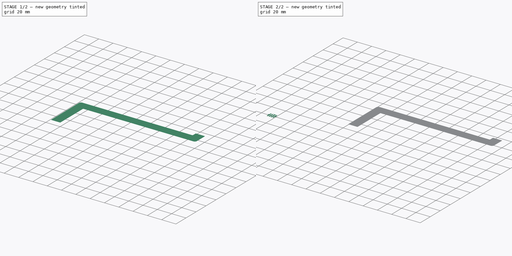
[diagram: build sequence overview — one tinted view per stage of 2, left to right]
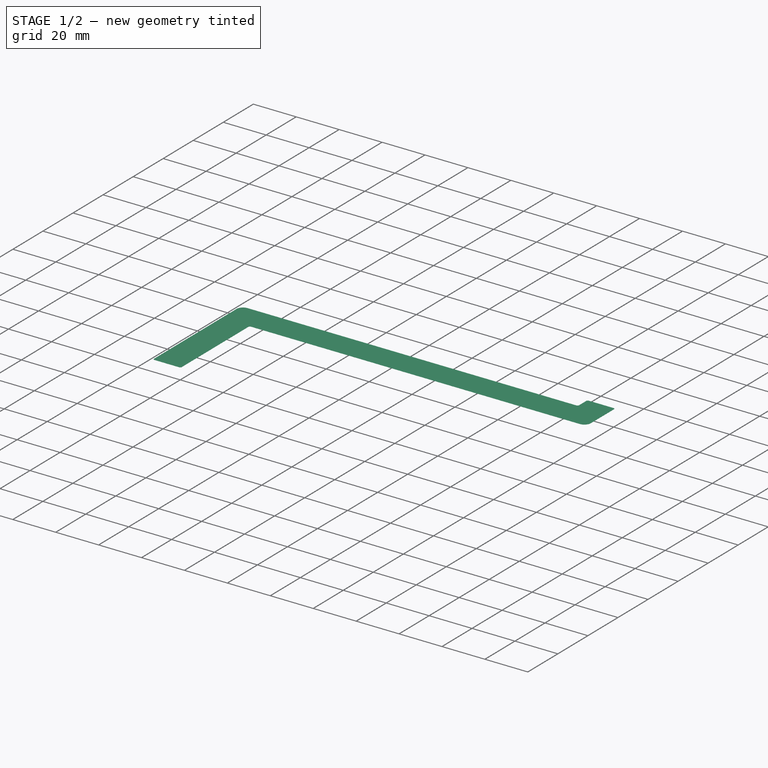
[diagram: stage 1 of 2 — iso view after this stage's code; geometry added in this stage tinted green]
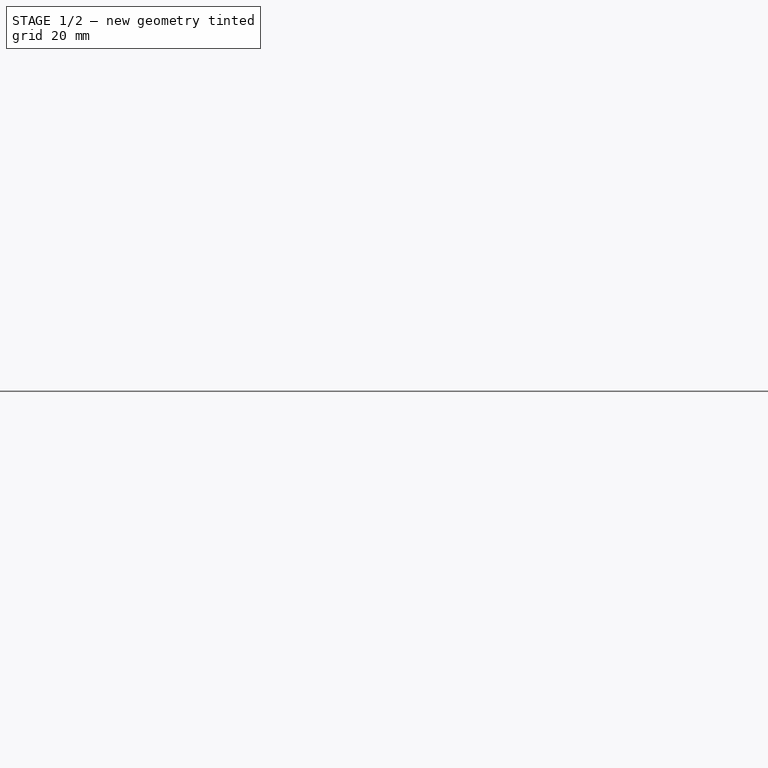
[diagram: stage 1 of 2 — front view after this stage's code; geometry added in this stage tinted green]
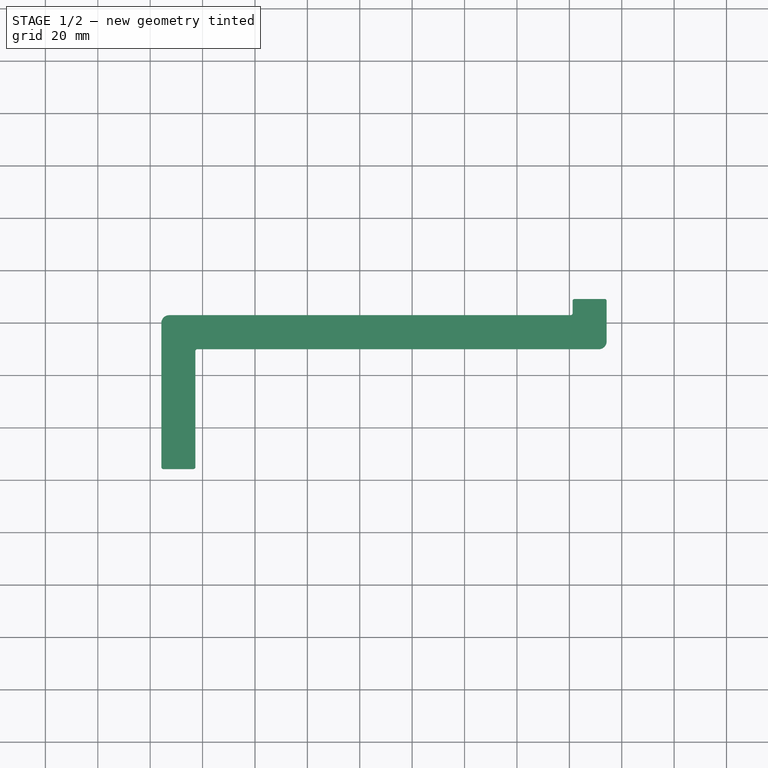
[diagram: stage 1 of 2 — top view after this stage's code; geometry added in this stage tinted green]
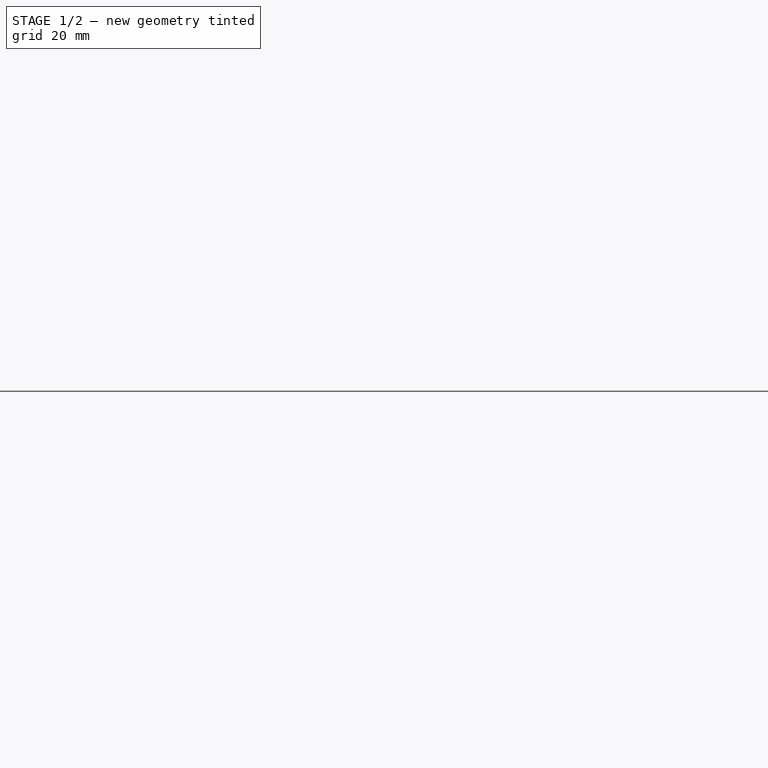
[diagram: stage 1 of 2 — right view after this stage's code; geometry added in this stage tinted green]
FCSTD DOCUMENT  (FreeCAD 0.20R29603 (Git))
Label: tape
License: All rights reserved
LicenseURL: http://en.wikipedia.org/wiki/All_rights_reserved
objects: Sketcher::SketchObject×2, Image::ImagePlane×1, Part::Extrusion×1, PartDesign::Pad×1, PartDesign::Body×1
note: 6 computed .brp shape members not serialized (recipe doc carries the construction recipe); baked Part::Feature solids carry a one-line shape summary decoded from their .brp

FEATURE [PartDesign::Pad] Pad
  Direction = (0,0,1)
  Length = 0.01
  Length2 = 10
  Profile = -> Sketch
  ReferenceAxis = -> Sketch [N_Axis]
  Type = 0
FEATURE [PartDesign::Body] Body
  Group = -> [Sketch,Pad]
  Origin = -> Origin
  Tip = -> Pad
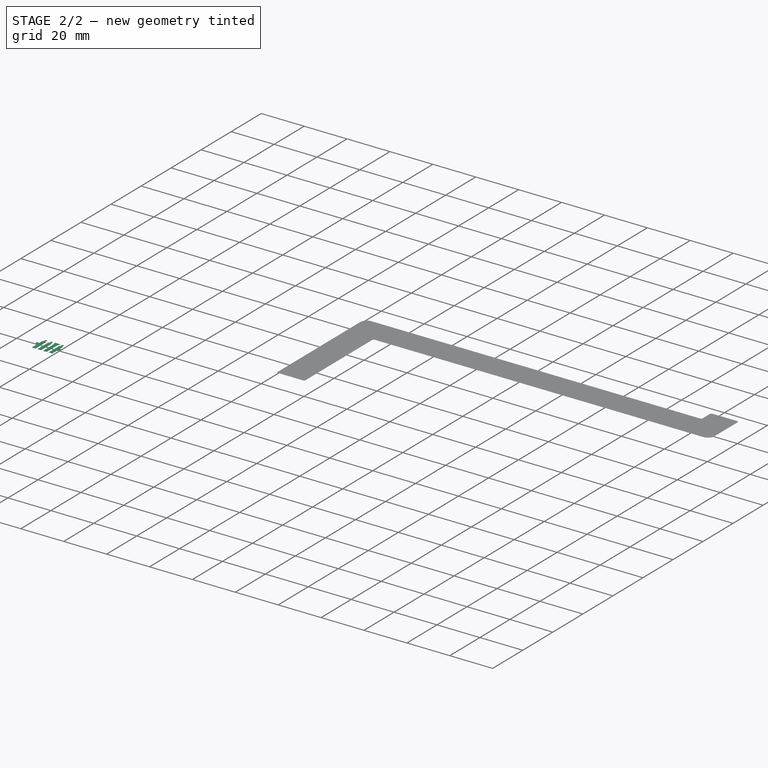
[diagram: stage 2 of 2 — iso view after this stage's code; geometry added in this stage tinted green]
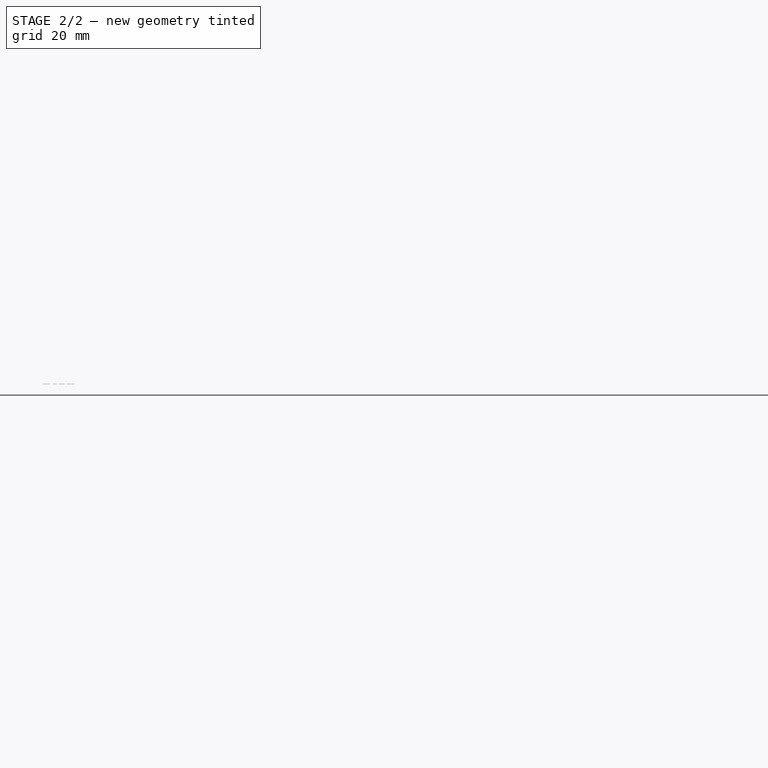
[diagram: stage 2 of 2 — front view after this stage's code; geometry added in this stage tinted green]
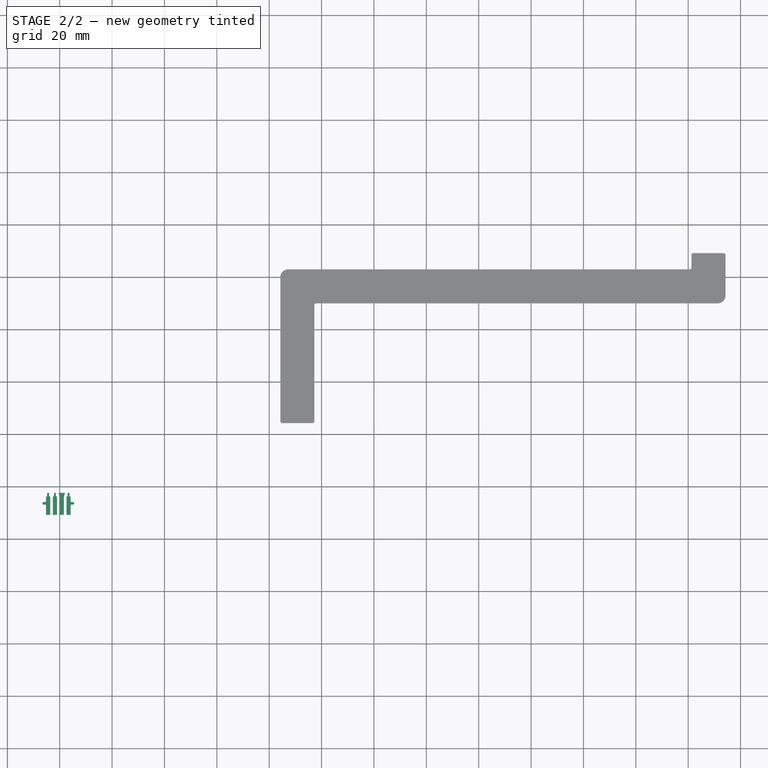
[diagram: stage 2 of 2 — top view after this stage's code; geometry added in this stage tinted green]
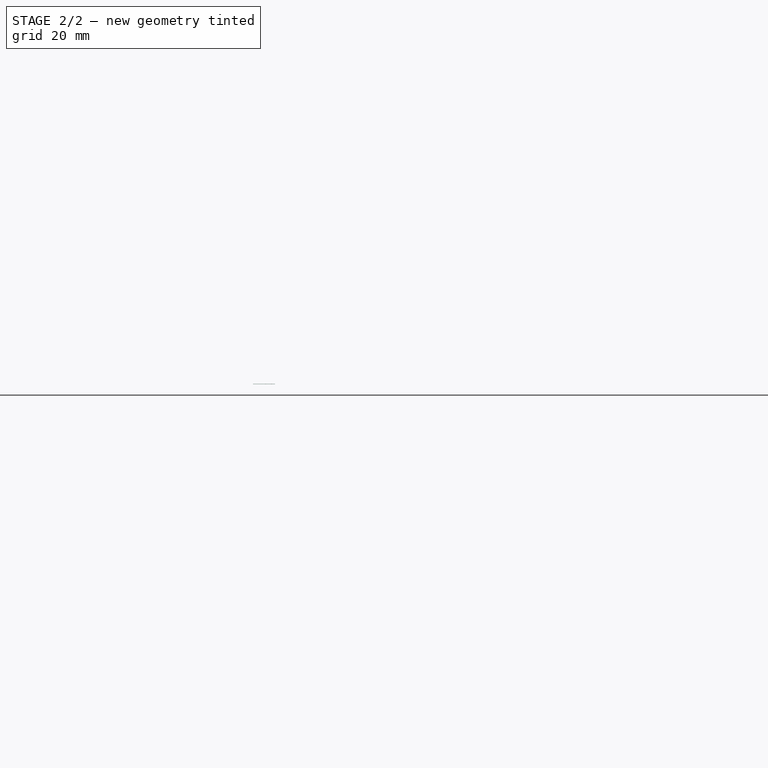
[diagram: stage 2 of 2 — right view after this stage's code; geometry added in this stage tinted green]
FEATURE [Image::ImagePlane] ImagePlane
  XSize = 179.676
  YSize = 81.3933
FEATURE [Sketcher::SketchObject] Sketch
  FullyConstrained = true
  MapMode = 5
  Support = -> [XY_Plane]
  sketch-geometry (16):
    g0: LineSegment StartX=17.25 StartY=5 StartZ=0 EndX=17.25 EndY=49.25 EndZ=0
    g1: LineSegment StartX=18 StartY=50 StartZ=0 EndX=171.25 EndY=50 EndZ=0
    g2: LineSegment StartX=174.25 StartY=53 StartZ=0 EndX=174.25 EndY=68.45 EndZ=0
    g3: LineSegment StartX=162 StartY=69.2 StartZ=0 EndX=173.5 EndY=69.2 EndZ=0
    g4: LineSegment StartX=161.25 StartY=68.45 StartZ=0 EndX=161.25 EndY=63.75 EndZ=0
    g5: LineSegment StartX=160.5 StartY=63 StartZ=0 EndX=7.25 EndY=63 EndZ=0
    g6: LineSegment StartX=4.25 StartY=60 StartZ=0 EndX=4.25 EndY=5 EndZ=0
    g7: LineSegment StartX=5 StartY=4.25 StartZ=0 EndX=16.5 EndY=4.25 EndZ=0
    g8: ArcOfCircle CenterX=16.5 CenterY=5 CenterZ=0 NormalX=0 NormalY=0 NormalZ=1 AngleXU=0 Radius=0.75 StartAngle=4.71239 EndAngle=6.28319
    g9: ArcOfCircle CenterX=5 CenterY=5 CenterZ=0 NormalX=0 NormalY=0 NormalZ=1 AngleXU=0 Radius=0.75 StartAngle=3.14159 EndAngle=4.71239
    g10: ArcOfCircle CenterX=18 CenterY=49.25 CenterZ=0 NormalX=0 NormalY=0 NormalZ=1 AngleXU=0 Radius=0.75 StartAngle=1.5708 EndAngle=3.14159
    g11: ArcOfCircle CenterX=7.25 CenterY=60 CenterZ=0 NormalX=0 NormalY=0 NormalZ=1 AngleXU=0 Radius=3 StartAngle=1.5708 EndAngle=3.14159
    g12: ArcOfCircle CenterX=162 CenterY=68.45 CenterZ=0 NormalX=0 NormalY=0 NormalZ=1 AngleXU=0 Radius=0.75 StartAngle=1.5708 EndAngle=3.14159
    g13: ArcOfCircle CenterX=173.5 CenterY=68.45 CenterZ=0 NormalX=0 NormalY=0 NormalZ=1 AngleXU=0 Radius=0.75 StartAngle=-3.6e-15 EndAngle=1.5708
    g14: ArcOfCircle CenterX=160.5 CenterY=63.75 CenterZ=0 NormalX=0 NormalY=0 NormalZ=1 AngleXU=0 Radius=0.75 StartAngle=4.71239 EndAngle=6.28319
    g15: ArcOfCircle CenterX=171.25 CenterY=53 CenterZ=0 NormalX=0 NormalY=0 NormalZ=1 AngleXU=0 Radius=3 StartAngle=4.71239 EndAngle=6.28319
  constraints (40):
    c: Vertical(g0)
    c: Horizontal(g1)
    c: Vertical(g2)
    c: Horizontal(g3)
    c: Horizontal(g5)
    c: Vertical(g6)
    c: Horizontal(g7)
    c: Vertical(g4)
    c: Tangent(g12,g4) = -1.5708
    c: Tangent(g12,g3) = 1.5708
    c: Tangent(g13,g3) = 1.5708
    c: Tangent(g13,g2) = -1.5708
    c: Tangent(g15,g2) = -1.5708
    c: Tangent(g15,g1) = -1.5708
    c: Tangent(g14,g4) = 1.5708
    c: Tangent(g14,g5) = 1.5708
    c: Tangent(g10,g1) = 1.5708
    c: Tangent(g10,g0) = 1.5708
    c: Tangent(g8,g0) = -1.5708
    c: Tangent(g8,g7) = -1.5708
    c: Tangent(g9,g7) = -1.5708
    c: Tangent(g9,g6) = -1.5708
    c: Tangent(g11,g6) = -1.5708
    c: Tangent(g11,g5) = -1.5708
    c: DistanceY(g1,g5) = 13
    c: DistanceX(g6,g0) = 13
    c: DistanceX(g4,g2) = 13
    c: DistanceY(g1,g3) = 19.2
    c: DistanceY(g7,g0) = 45
    c: Radius(g15) = 3
    c: Radius(g13) = 0.75
    c: Equal(g11,g15)
    c: Equal(g13,g12)
    c: Equal(g12,g8)
    c: Equal(g8,g9)
    c: Equal(g14,g10)
    c: Radius(g14) = 0.75
    c: DistanceX(g6,g2) = 170
    c: DistanceX(g-1,g9) = 5
    c: DistanceY(g-1,g9) = 5
FEATURE [Sketcher::SketchObject] Sketch001
  FullyConstrained = false
  MapMode = 5
  Support = -> [XY_Plane]
  sketch-geometry (47):
    g0: LineSegment StartX=-86.6494 StartY=-26.4457 StartZ=0 EndX=-73.8994 EndY=-26.4457 EndZ=0
    g1: LineSegment StartX=-85.2185 StartY=-23.8811 StartZ=0 EndX=-84.7935 EndY=-23.6311 EndZ=0
    g2: LineSegment StartX=-84.7935 StartY=-23.6311 StartZ=0 EndX=-84.7935 EndY=-22.3889 EndZ=0
    g3: LineSegment StartX=-84.7935 StartY=-22.3889 StartZ=0 EndX=-84.0435 EndY=-22.3889 EndZ=0
    g4: LineSegment StartX=-84.0435 StartY=-22.3889 StartZ=0 EndX=-84.0435 EndY=-23.6311 EndZ=0
    g5: LineSegment StartX=-84.0435 StartY=-23.6311 StartZ=0 EndX=-83.6185 EndY=-23.8811 EndZ=0
    g6: LineSegment StartX=-83.6185 StartY=-23.8811 StartZ=0 EndX=-83.6185 EndY=-30.7811 EndZ=0
    g7: LineSegment StartX=-83.6185 StartY=-30.7811 StartZ=0 EndX=-85.2185 EndY=-30.7811 EndZ=0
    g8: LineSegment StartX=-85.2185 StartY=-30.7811 StartZ=0 EndX=-85.2185 EndY=-26.8811 EndZ=0
    g9: LineSegment StartX=-85.2185 StartY=-26.8811 StartZ=0 EndX=-86.0685 EndY=-26.8811 EndZ=0
    g10: LineSegment StartX=-86.0685 StartY=-25.8811 StartZ=0 EndX=-85.2185 EndY=-25.8811 EndZ=0
    g11: LineSegment StartX=-85.2185 StartY=-25.8811 StartZ=0 EndX=-85.2185 EndY=-23.8811 EndZ=0
    g12: ArcOfCircle CenterX=-86.0685 CenterY=-26.3811 CenterZ=0 NormalX=0 NormalY=0 NormalZ=1 AngleXU=0 Radius=0.5 StartAngle=1.5708 EndAngle=4.71239
    g13: LineSegment StartX=-77.4185 StartY=-23.8811 StartZ=0 EndX=-77.4185 EndY=-30.7811 EndZ=0
    g14: LineSegment StartX=-77.4185 StartY=-30.7811 StartZ=0 EndX=-75.8185 EndY=-30.7811 EndZ=0
    g15: LineSegment StartX=-75.8185 StartY=-30.7811 StartZ=0 EndX=-75.8185 EndY=-26.8811 EndZ=0
    g16: LineSegment StartX=-75.8185 StartY=-26.8811 StartZ=0 EndX=-74.9685 EndY=-26.8811 EndZ=0
    g17: LineSegment StartX=-75.8185 StartY=-25.8811 StartZ=0 EndX=-74.9685 EndY=-25.8811 EndZ=0
    g18: LineSegment StartX=-75.8185 StartY=-25.8811 StartZ=0 EndX=-75.8185 EndY=-23.8811 EndZ=0
    g19: LineSegment StartX=-75.8185 StartY=-23.8811 StartZ=0 EndX=-76.2435 EndY=-23.6311 EndZ=0
    g20: LineSegment StartX=-76.2435 StartY=-23.6311 StartZ=0 EndX=-76.2435 EndY=-22.3889 EndZ=0
    g21: LineSegment StartX=-76.2435 StartY=-22.3889 StartZ=0 EndX=-76.9935 EndY=-22.3889 EndZ=0
    g22: LineSegment StartX=-76.9935 StartY=-22.3889 StartZ=0 EndX=-76.9935 EndY=-23.6311 EndZ=0
    g23: LineSegment StartX=-76.9935 StartY=-23.6311 StartZ=0 EndX=-77.4185 EndY=-23.8811 EndZ=0
    g24: ArcOfCircle CenterX=-74.9685 CenterY=-26.3811 CenterZ=0 NormalX=0 NormalY=0 NormalZ=1 AngleXU=0 Radius=0.5 StartAngle=4.71239 EndAngle=7.85398
    g25: LineSegment StartX=-72.9769 StartY=-30.7811 StartZ=0 EndX=-87.3443 EndY=-30.7811 EndZ=0
    g26: LineSegment StartX=-82.6185 StartY=-30.7811 StartZ=0 EndX=-81.0185 EndY=-30.7811 EndZ=0
    g27: LineSegment StartX=-81.0185 StartY=-30.7811 StartZ=0 EndX=-81.0185 EndY=-23.8811 EndZ=0
    g28: LineSegment StartX=-81.0185 StartY=-23.8811 StartZ=0 EndX=-81.4435 EndY=-23.6311 EndZ=0
    g29: LineSegment StartX=-81.4435 StartY=-23.6311 StartZ=0 EndX=-81.4435 EndY=-22.3889 EndZ=0
    g30: LineSegment StartX=-81.4435 StartY=-22.3889 StartZ=0 EndX=-82.1935 EndY=-22.3889 EndZ=0
    g31: LineSegment StartX=-82.1935 StartY=-22.3889 StartZ=0 EndX=-82.1935 EndY=-23.6311 EndZ=0
    g32: LineSegment StartX=-82.1935 StartY=-23.6311 StartZ=0 EndX=-82.6185 EndY=-23.8811 EndZ=0
    g33: LineSegment StartX=-82.6185 StartY=-23.8811 StartZ=0 EndX=-82.6185 EndY=-30.7811 EndZ=0
    g34: LineSegment StartX=-78.4185 StartY=-30.7811 StartZ=0 EndX=-78.4185 EndY=-23.8811 EndZ=0
    g35: LineSegment StartX=-78.4185 StartY=-23.8811 StartZ=0 EndX=-77.9685 EndY=-22.3889 EndZ=0
    g36: LineSegment StartX=-77.9685 StartY=-22.3889 StartZ=0 EndX=-80.4685 EndY=-22.3889 EndZ=0
    g37: LineSegment StartX=-80.4685 StartY=-22.3889 StartZ=0 EndX=-80.0185 EndY=-23.8811 EndZ=0
    g38: LineSegment StartX=-80.0185 StartY=-23.8811 StartZ=0 EndX=-80.0185 EndY=-30.7811 EndZ=0
    g39: LineSegment StartX=-80.0185 StartY=-30.7811 StartZ=0 EndX=-78.4185 EndY=-30.7811 EndZ=0
    g40: LineSegment StartX=-87.3958 StartY=-25.8811 StartZ=0 EndX=-72.0882 EndY=-25.8811 EndZ=0
    g41: LineSegment StartX=-72.0882 StartY=-26.8811 StartZ=0 EndX=-87.0482 EndY=-26.8811 EndZ=0
    g42: LineSegment StartX=-80.5185 StartY=-35.9742 StartZ=0 EndX=-80.5185 EndY=-21.6277 EndZ=0
    g43: LineSegment StartX=-86.7112 StartY=-22.3889 StartZ=0 EndX=-72.8495 EndY=-22.3889 EndZ=0
    g44: LineSegment StartX=-87.0343 StartY=-23.8811 StartZ=0 EndX=-71.7013 EndY=-23.8811 EndZ=0
    g45: LineSegment StartX=-87.4901 StartY=-23.6311 StartZ=0 EndX=-72.1433 EndY=-23.6311 EndZ=0
    g46: LineSegment StartX=-79.2185 StartY=-21.9372 StartZ=0 EndX=-79.2185 EndY=-34.4402 EndZ=0
  constraints (126):
    c: Horizontal(g0)
    c: DistanceX(g0,g0) = 12.75  'scale'
    c: Coincident(g1,g2)
    c: Coincident(g2,g3)
    c: Horizontal(g3)
    c: Coincident(g3,g4)
    c: Coincident(g4,g5)
    c: Coincident(g5,g6)
    c: Vertical(g6)
    c: Coincident(g6,g7)
    c: Coincident(g7,g8)
    c: Vertical(g8)
    c: Horizontal(g9)
    c: Horizontal(g10)
    c: Coincident(g10,g11)
    c: Coincident(g11,g1)
    c: Coincident(g12,g10)
    c: Coincident(g12,g9)
    c: Vertical(g11)
    c: Coincident(g13,g14)
    c: Horizontal(g14)
    c: Coincident(g14,g15)
    c: Horizontal(g17)
    c: Coincident(g17,g18)
    c: Coincident(g18,g19)
    c: Coincident(g19,g20)
    c: Coincident(g20,g21)
    c: Coincident(g21,g22)
    c: Coincident(g22,g23)
    c: Coincident(g23,g13)
    c: Coincident(g24,g16)
    c: Horizontal(g16)
    c: DistanceX(g0) = -73.8994
    c: DistanceY(g0) = -26.4457
    c: Coincident(g9,g8)
    c: DistanceX(g14,g14) = 1.6
    c: Horizontal(g25)
    c: PointOnObject(g6,g25)
    c: PointOnObject(g13,g25)
    c: Horizontal(g7)
    c: PointOnObject(g26,g25)
    c: Coincident(g26,g27)
    c: Vertical(g27)
    c: Coincident(g27,g28)
    c: Coincident(g28,g29)
    c: Vertical(g29)
    c: Coincident(g29,g30)
    c: Horizontal(g30)
    c: Coincident(g30,g31)
    c: Vertical(g31)
    c: Coincident(g31,g32)
    c: Coincident(g32,g33)
    c: Coincident(g33,g26)
    c: Vertical(g33)
    c: Vertical(g34)
    c: Coincident(g34,g35)
    c: Coincident(g35,g36)
    c: Coincident(g36,g37)
    c: Coincident(g37,g38)
    c: PointOnObject(g38,g25)
    c: Vertical(g38)
    c: Coincident(g38,g39)
    c: Coincident(g39,g34)
    c: Horizontal(g26)
    c: Equal(g7,g26)
    c: Equal(g26,g39)
    c: Equal(g39,g14)
    c: DistanceX(g6,g26) = 1
    c: Vertical(g13)
    c: Coincident(g15,g16)
    c: Vertical(g15)
    c: Vertical(g18)
    c: Vertical(g2)
    c: Vertical(g4)
    c: Horizontal(g40)
    c: Horizontal(g41)
    c: DistanceY(g41,g40) = 1
    c: DistanceX(g40,g41) = 0
    c: PointOnObject(g16,g41)
    c: PointOnObject(g17,g40)
    c: PointOnObject(g10,g40)
    c: PointOnObject(g9,g41)
    c: Equal(g16,g17)
    c: DistanceX(g17,g17) = 0.85
    c: Equal(g10,g17)
    c: DistanceX(g10,g8) = 0
    c: Symmetric(g24,g12,g42)
    c: DistanceX(g26,g38) = 1
    c: Symmetric(g14,g7,g42)
    c: Symmetric(g34,g26,g42)
    c: DistanceX(g21,g21) = 0.75
    c: Horizontal(g43)
    c: Symmetric(g20,g2,g42)
    c: Symmetric(g21,g3,g42)
    c: Equal(g30,g3)
    c: PointOnObject(g20,g43)
    c: PointOnObject(g29,g43)
    c: Tangent(g24,g17) = 1.5708
    c: Horizontal(g44)
    c: PointOnObject(g18,g44)
    c: PointOnObject(g13,g44)
    c: PointOnObject(g34,g44)
    c: PointOnObject(g37,g44)
    c: PointOnObject(g27,g44)
    c: PointOnObject(g32,g44)
    c: PointOnObject(g1,g44)
    c: PointOnObject(g5,g44)
    c: Equal(g1,g5)
    c: Equal(g5,g32)
    c: Equal(g32,g28)
    c: Equal(g28,g23)
    c: Equal(g23,g19)
    c: Vertical(g22)
    c: Vertical(g20)
    c: Equal(g20,g22)
    c: Equal(g22,g29)
    c: Equal(g29,g31)
    c: Horizontal(g45)
    c: PointOnObject(g19,g45)
    c: DistanceY(g44,g45) = 0.25
    c: DistanceX(g36,g36) = 2.5
    c: Symmetric(g34,g38,g46)
    c: Symmetric(g35,g36,g46)
    c: DistanceY(g8,g8) = 3.9
    c: DistanceY(g18,g18) = 2
    c: PointOnObject(g35,g43)
FEATURE [Part::Extrusion] Extrude
  Base = -> Sketch001
  Dir = (0,0,1)
  DirMode = 2
  FaceMakerClass = Part::FaceMakerBullseye
  LengthFwd = 0.1
  LengthRev = 0
  Solid = true
  Symmetric = false
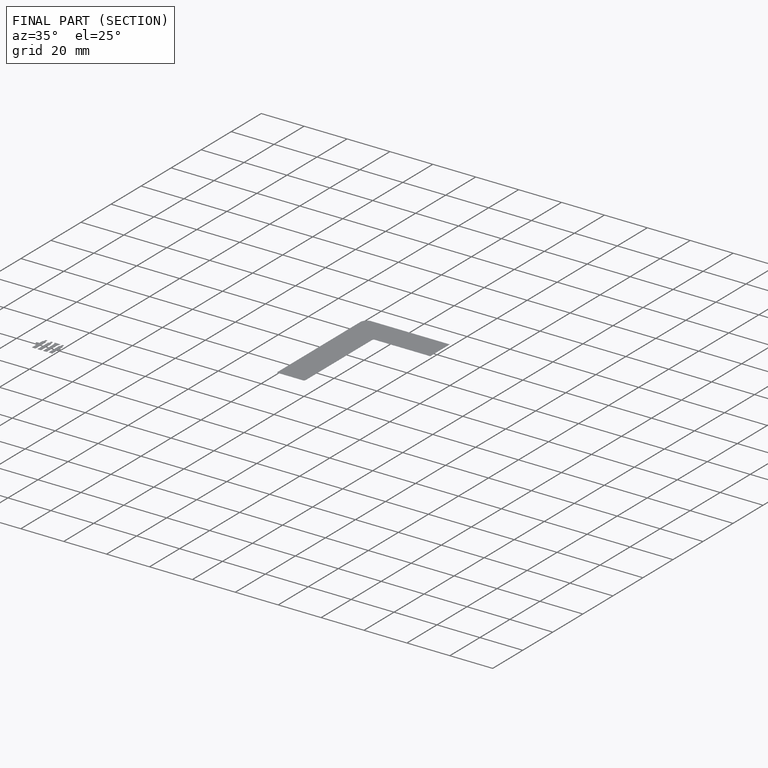
[diagram: finished part — half-section view (interior)]
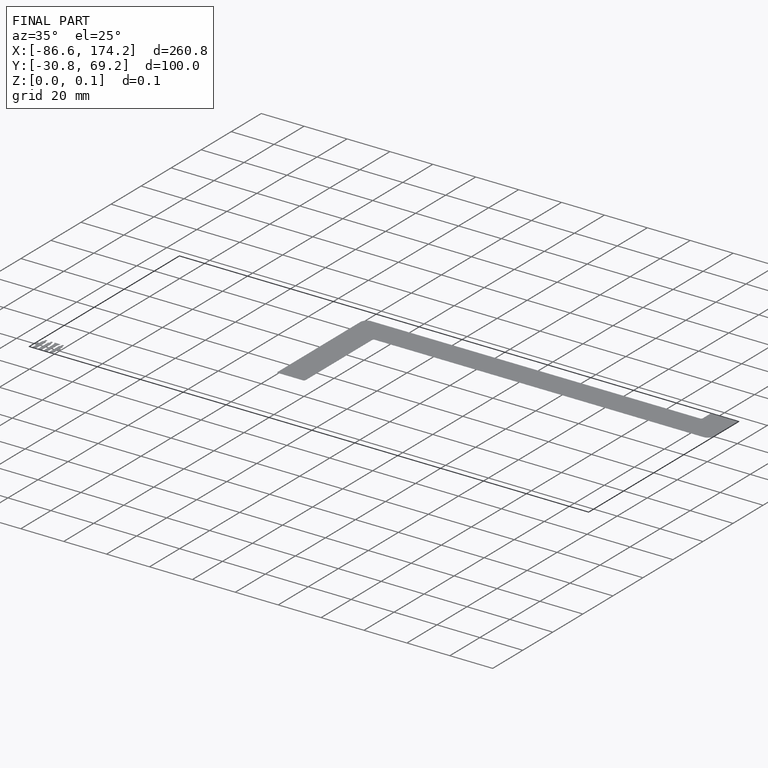
[diagram: finished part — iso view with bounding-box wireframe]
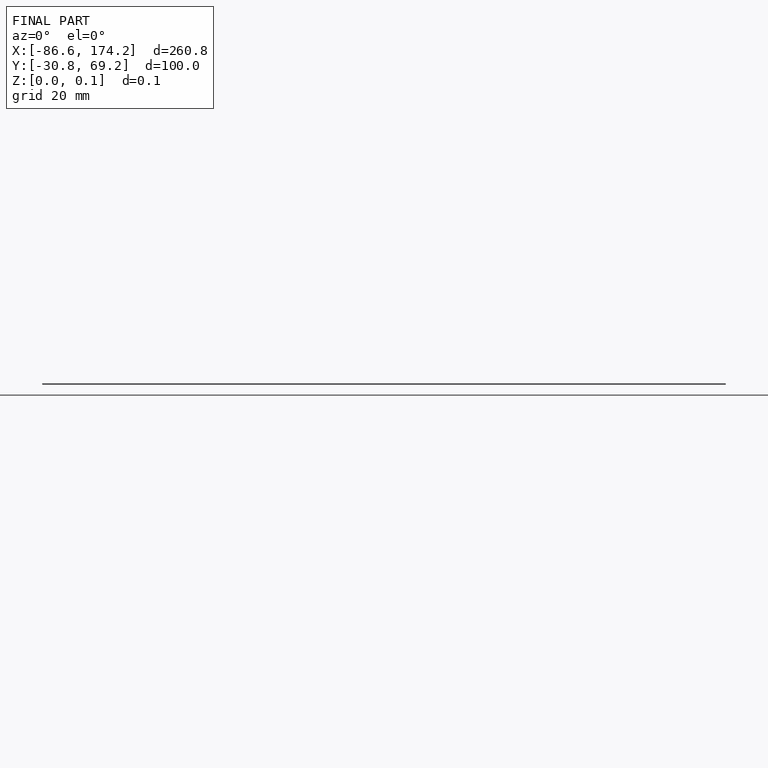
[diagram: finished part — front view with bounding-box wireframe]
